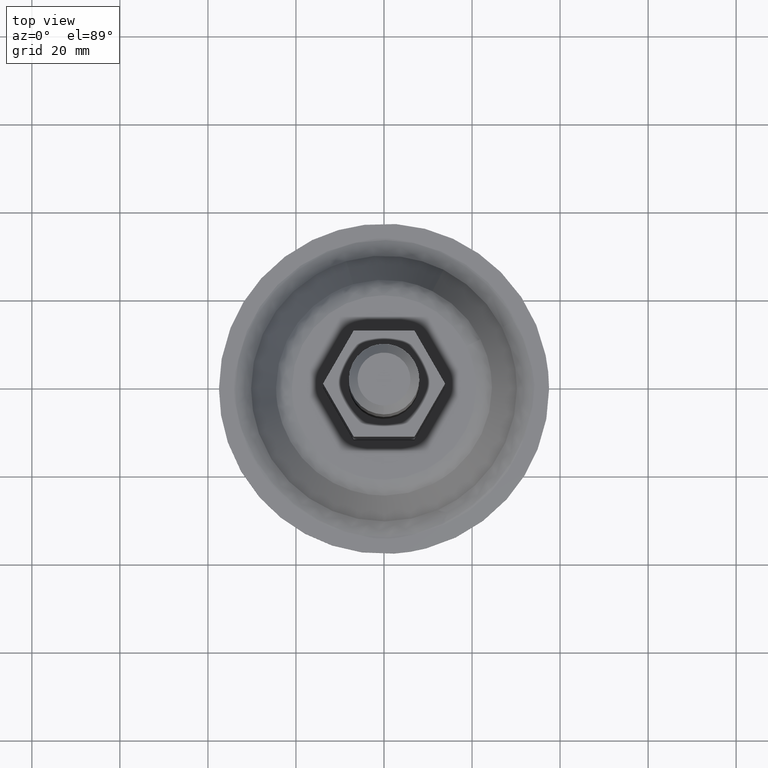
[diagram: clean part render]
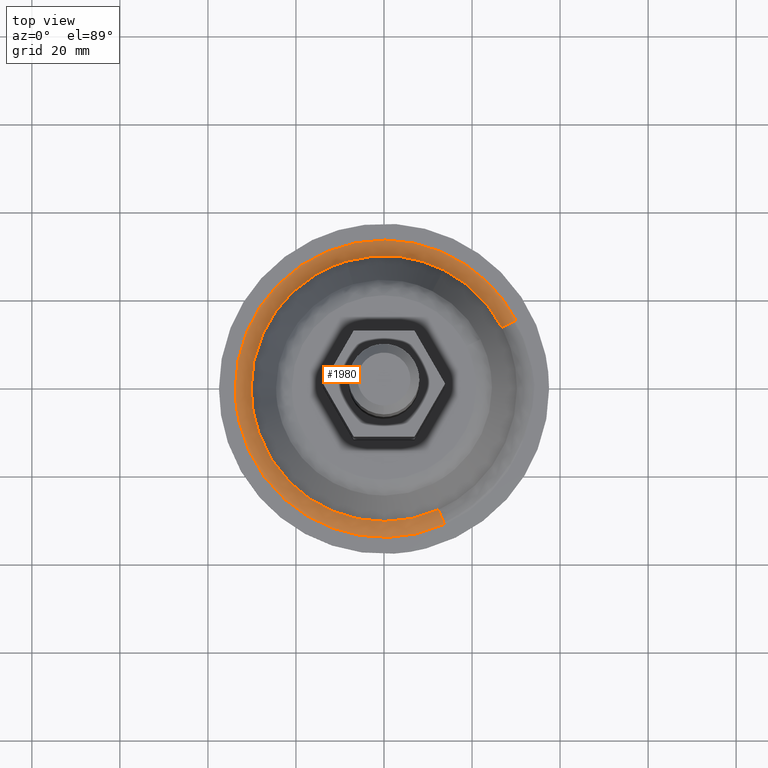
[diagram: same view with one face highlighted and labeled with its STEP entity id]
A machine part, top view. The second image highlights one B-rep face of the part: STEP entity #1980.
In plain terms, the highlighted face is a freeform B-spline surface patch.
Its self-contained STEP definition (entity closure, byte-faithful):
#1351=CARTESIAN_POINT('',(13.517878388915589,26.992745342813080,4.237050468312948));
#1352=VERTEX_POINT('',#1351);
#1353=CARTESIAN_POINT('',(26.811445478011841,13.873994691196600,4.237050467254566));
#1354=VERTEX_POINT('',#1353);
#1355=CARTESIAN_POINT('',(13.517878388915593,26.992745342813091,4.237050468312948));
#1356=CARTESIAN_POINT('',(22.298365181613569,22.595506338497614,4.237050467956022));
#1357=CARTESIAN_POINT('',(26.811445478011844,13.873994691196605,4.237050467254566));
#1365=(BOUNDED_CURVE()B_SPLINE_CURVE(2,(#1355,#1356,#1357),.UNSPECIFIED.,.F.,.U.)B_SPLINE_CURVE_WITH_KNOTS((3,3),(0.326127052924521,0.421825371002655),.UNSPECIFIED.)CURVE()GEOMETRIC_REPRESENTATION_ITEM()RATIONAL_B_SPLINE_CURVE((0.875940413897650,0.832104291764559,0.874103860135780))REPRESENTATION_ITEM(''));
#1366=EDGE_CURVE('',#1352,#1354,#1365,.T.);
#1452=CARTESIAN_POINT('',(-8.573977500285878,28.945262947459270,4.237050468562970));
#1453=VERTEX_POINT('',#1452);
#1459=CARTESIAN_POINT('',(-30.188430520198551,0.0,4.237050468566710));
#1460=VERTEX_POINT('',#1459);
#1461=CARTESIAN_POINT('',(-30.188430520198551,0.0,4.237050468566710));
#1462=CARTESIAN_POINT('',(-30.188430520198555,22.542770276701628,4.237050468566710));
#1463=CARTESIAN_POINT('',(-8.573977500285878,28.945262947459273,4.237050468562970));
#1471=(BOUNDED_CURVE()B_SPLINE_CURVE(2,(#1461,#1462,#1463),.UNSPECIFIED.,.F.,.U.)B_SPLINE_CURVE_WITH_KNOTS((3,3),(0.0,0.201641517065243),.UNSPECIFIED.)CURVE()GEOMETRIC_REPRESENTATION_ITEM()RATIONAL_B_SPLINE_CURVE((1.0,0.763762268081333,0.908607213379723))REPRESENTATION_ITEM(''));
#1472=EDGE_CURVE('',#1460,#1453,#1471,.T.);
#1474=CARTESIAN_POINT('',(12.317877356381739,-27.561045603082832,4.237050467581096));
#1475=VERTEX_POINT('',#1474);
#1476=CARTESIAN_POINT('',(12.317877356381738,-27.561045603082832,4.237050467581095));
#1477=CARTESIAN_POINT('',(6.439147325490323,-30.188430520198558,4.237050468566709));
#1478=CARTESIAN_POINT('',(0.0,-30.188430520198551,4.237050468566710));
#1479=CARTESIAN_POINT('',(-30.188430520198555,-30.188430520198555,4.237050468566710));
#1480=CARTESIAN_POINT('',(-30.188430520198551,0.0,4.237050468566710));
#1488=(BOUNDED_CURVE()B_SPLINE_CURVE(2,(#1476,#1477,#1478,#1479,#1480),.UNSPECIFIED.,.F.,.U.)B_SPLINE_CURVE_WITH_KNOTS((3,2,3),(0.680709483577527,0.750000000000000,1.0),.UNSPECIFIED.)CURVE()GEOMETRIC_REPRESENTATION_ITEM()RATIONAL_B_SPLINE_CURVE((0.882641638331989,0.918821110447102,1.0,0.707106781186547,1.0))REPRESENTATION_ITEM(''));
#1489=EDGE_CURVE('',#1475,#1460,#1488,.T.);
#1536=CARTESIAN_POINT('',(-8.573977500285878,28.945262947459270,4.237050468562971));
#1537=CARTESIAN_POINT('',(-4.377114109933565,30.188430520198551,4.237050468566711));
#1538=CARTESIAN_POINT('',(0.0,30.188430520198551,4.237050468566710));
#1539=CARTESIAN_POINT('',(7.136676123961477,30.188430520198551,4.237050468566710));
#1540=CARTESIAN_POINT('',(13.517878388915593,26.992745342813091,4.237050468312948));
#1548=(BOUNDED_CURVE()B_SPLINE_CURVE(2,(#1536,#1537,#1538,#1539,#1540),.UNSPECIFIED.,.F.,.U.)B_SPLINE_CURVE_WITH_KNOTS((3,2,3),(0.201641517065243,0.250000000000000,0.326127052924521),.UNSPECIFIED.)CURVE()GEOMETRIC_REPRESENTATION_ITEM()RATIONAL_B_SPLINE_CURVE((0.908607213379723,0.943344513105214,1.0,0.910811609720620,0.875940413897650))REPRESENTATION_ITEM(''));
#1549=EDGE_CURVE('',#1453,#1352,#1548,.T.);
#1883=CARTESIAN_POINT('',(13.868563521119281,-31.030680091835308,2.005508376567088));
#1884=CARTESIAN_POINT('',(-15.435365966065921,-44.127505759486716,2.005508376567087));
#1885=CARTESIAN_POINT('',(-30.186713501558149,-15.620579024991066,2.005508376567087));
#1886=CARTESIAN_POINT('',(-45.807292526549212,14.566134476567090,2.005508376567088));
#1887=CARTESIAN_POINT('',(-15.620579024991066,30.186713501558149,2.005508376567087));
#1888=CARTESIAN_POINT('',(14.566134476567086,45.807292526549212,2.005508376567088));
#1889=CARTESIAN_POINT('',(30.186713501558149,15.620579024991066,2.005508376567087));
#1890=CARTESIAN_POINT('',(12.730357924442700,-28.483964010142863,1.858963345226804));
#1891=CARTESIAN_POINT('',(-14.168571470545620,-40.505921307258426,1.858963345226802));
#1892=CARTESIAN_POINT('',(-27.709262523998415,-14.338583925606846,1.858963345226803));
#1893=CARTESIAN_POINT('',(-42.047846449605260,13.370678598391578,1.858963345226803));
#1894=CARTESIAN_POINT('',(-14.338583925606846,27.709262523998415,1.858963345226803));
#1895=CARTESIAN_POINT('',(13.370678598391576,42.047846449605260,1.858963345226803));
#1896=CARTESIAN_POINT('',(27.709262523998415,14.338583925606846,1.858963345226803));
#1897=CARTESIAN_POINT('',(12.282242367372380,-27.481312908285894,4.427354562063510));
#1898=CARTESIAN_POINT('',(-13.669830010557009,-39.080090737609048,4.427354562063509));
#1899=CARTESIAN_POINT('',(-26.733881337888302,-13.833857934275056,4.427354562063509));
#1900=CARTESIAN_POINT('',(-40.567739272163344,12.900023403613250,4.427354562063508));
#1901=CARTESIAN_POINT('',(-13.833857934275056,26.733881337888302,4.427354562063509));
#1902=CARTESIAN_POINT('',(12.900023403613247,40.567739272163358,4.427354562063508));
#1903=CARTESIAN_POINT('',(26.733881337888302,13.833857934275056,4.427354562063509));
#1911=(BOUNDED_SURFACE()B_SPLINE_SURFACE(2,2,((#1883,#1890,#1897),(#1884,#1891,#1898),(#1885,#1892,#1899),(#1886,#1893,#1900),(#1887,#1894,#1901),(#1888,#1895,#1902),(#1889,#1896,#1903)),.UNSPECIFIED.,.F.,.F.,.U.)B_SPLINE_SURFACE_WITH_KNOTS((3,2,2,3),(3,3),(0.0,54.061946478693812,110.376474060666500,166.691001642639210),(0.0,5.033719934232272),.UNSPECIFIED.)GEOMETRIC_REPRESENTATION_ITEM()RATIONAL_B_SPLINE_SURFACE(((0.898933600151101,0.737985840819489,0.901312931015956),(0.661043347470245,0.542688170204070,0.662793021572290),(0.919619709079872,0.754968246959960,0.922053792706709),(0.650269332403177,0.533843167005908,0.651990489441690),(0.919619709079872,0.754968246959960,0.922053792706709),(0.650269332403177,0.533843167005908,0.651990489441690),(0.919619709079872,0.754968246959960,0.922053792706709)))REPRESENTATION_ITEM('')SURFACE());
#1912=CARTESIAN_POINT('',(13.782938127606171,-30.839094698453209,2.000000000000201));
#1913=VERTEX_POINT('',#1912);
#1914=CARTESIAN_POINT('',(-33.778974900876548,0.0,2.000000000000200));
#1915=VERTEX_POINT('',#1914);
#1916=CARTESIAN_POINT('',(13.782938127606167,-30.839094698453206,2.000000000000201));
#1917=CARTESIAN_POINT('',(7.205005101122420,-33.778974900876555,2.000000000000200));
#1918=CARTESIAN_POINT('',(0.0,-33.778974900876548,2.000000000000200));
#1919=CARTESIAN_POINT('',(-33.778974900876555,-33.778974900876555,2.000000000000199));
#1920=CARTESIAN_POINT('',(-33.778974900876548,0.0,2.000000000000200));
#1928=(BOUNDED_CURVE()B_SPLINE_CURVE(2,(#1916,#1917,#1918,#1919,#1920),.UNSPECIFIED.,.F.,.U.)B_SPLINE_CURVE_WITH_KNOTS((3,2,3),(0.680709483576904,0.750000000000000,1.0),.UNSPECIFIED.)CURVE()GEOMETRIC_REPRESENTATION_ITEM()RATIONAL_B_SPLINE_CURVE((0.882641638331339,0.918821110446372,1.0,0.707106781186548,1.0))REPRESENTATION_ITEM(''));
#1929=EDGE_CURVE('',#1913,#1915,#1928,.T.);
#1930=ORIENTED_EDGE('',*,*,#1929,.F.);
#1931=CARTESIAN_POINT('',(13.782938127606167,-30.839094698453209,2.000000000000200));
#1932=CARTESIAN_POINT('',(12.766055531011414,-28.563836810796737,2.000000001926971));
#1933=CARTESIAN_POINT('',(12.317877356381736,-27.561045603082825,4.237050467581095));
#1941=(BOUNDED_CURVE()B_SPLINE_CURVE(2,(#1931,#1932,#1933),.UNSPECIFIED.,.F.,.U.)B_SPLINE_CURVE_WITH_KNOTS((3,3),(-1.645059919522258,-0.344443061160723),.UNSPECIFIED.)CURVE()GEOMETRIC_REPRESENTATION_ITEM()RATIONAL_B_SPLINE_CURVE((0.884983933294497,0.752043508409372,0.887147264429790))REPRESENTATION_ITEM(''));
#1942=EDGE_CURVE('',#1913,#1475,#1941,.T.);
#1943=ORIENTED_EDGE('',*,*,#1942,.T.);
#1944=ORIENTED_EDGE('',*,*,#1489,.T.);
#1945=ORIENTED_EDGE('',*,*,#1472,.T.);
#1946=ORIENTED_EDGE('',*,*,#1549,.T.);
#1947=ORIENTED_EDGE('',*,*,#1366,.T.);
#1948=CARTESIAN_POINT('',(30.000338812942349,15.524136576835691,2.000000000000201));
#1949=VERTEX_POINT('',#1948);
#1950=CARTESIAN_POINT('',(30.000338812942349,15.524136576835691,2.000000000000200));
#1951=CARTESIAN_POINT('',(27.786962960506610,14.378791211129641,2.000000000119437));
#1952=CARTESIAN_POINT('',(26.811445478011844,13.873994691196600,4.237050467254566));
#1960=(BOUNDED_CURVE()B_SPLINE_CURVE(2,(#1950,#1951,#1952),.UNSPECIFIED.,.F.,.U.)B_SPLINE_CURVE_WITH_KNOTS((3,3),(-1.645059920413114,-0.344443061384672),.UNSPECIFIED.)CURVE()GEOMETRIC_REPRESENTATION_ITEM()RATIONAL_B_SPLINE_CURVE((0.905349035020298,0.769349407162589,0.907562148134197))REPRESENTATION_ITEM(''));
#1961=EDGE_CURVE('',#1949,#1354,#1960,.T.);
#1962=ORIENTED_EDGE('',*,*,#1961,.F.);
#1963=CARTESIAN_POINT('',(-33.778974900876548,0.0,2.000000000000200));
#1964=CARTESIAN_POINT('',(-33.778974900876555,33.778974900876555,2.000000000000199));
#1965=CARTESIAN_POINT('',(0.0,33.778974900876548,2.000000000000200));
#1966=CARTESIAN_POINT('',(20.554092052391422,33.778974900876555,2.000000000000200));
#1967=CARTESIAN_POINT('',(30.000338812942349,15.524136576835691,2.000000000000200));
#1975=(BOUNDED_CURVE()B_SPLINE_CURVE(2,(#1963,#1964,#1965,#1966,#1967),.UNSPECIFIED.,.F.,.U.)B_SPLINE_CURVE_WITH_KNOTS((3,2,3),(0.0,0.250000000000000,0.421825371003207),.UNSPECIFIED.)CURVE()GEOMETRIC_REPRESENTATION_ITEM()RATIONAL_B_SPLINE_CURVE((1.0,0.707106781186548,1.0,0.798694056052220,0.874103860136265))REPRESENTATION_ITEM(''));
#1976=EDGE_CURVE('',#1915,#1949,#1975,.T.);
#1977=ORIENTED_EDGE('',*,*,#1976,.F.);
#1978=EDGE_LOOP('',(#1930,#1943,#1944,#1945,#1946,#1947,#1962,#1977));
#1979=FACE_OUTER_BOUND('',#1978,.T.);
#1980=ADVANCED_FACE('',(#1979),#1911,.F.);